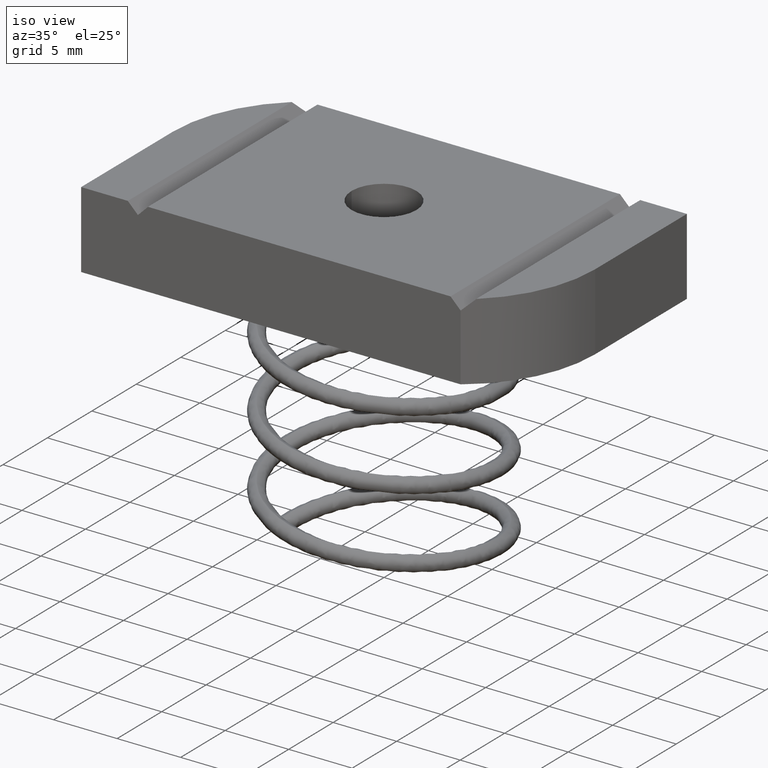
[diagram: clean part render]
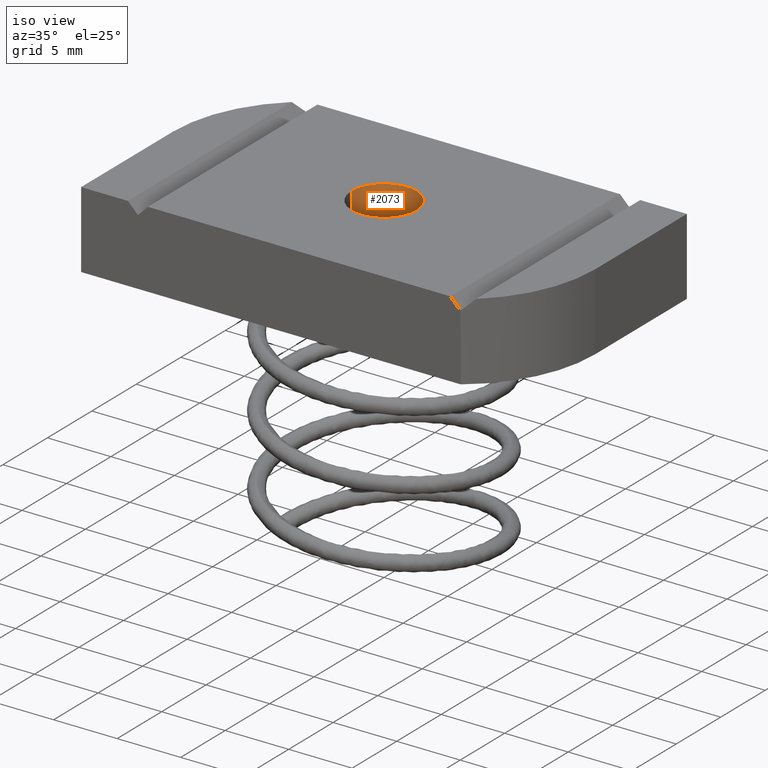
[diagram: same view with one face highlighted and labeled with its STEP entity id]
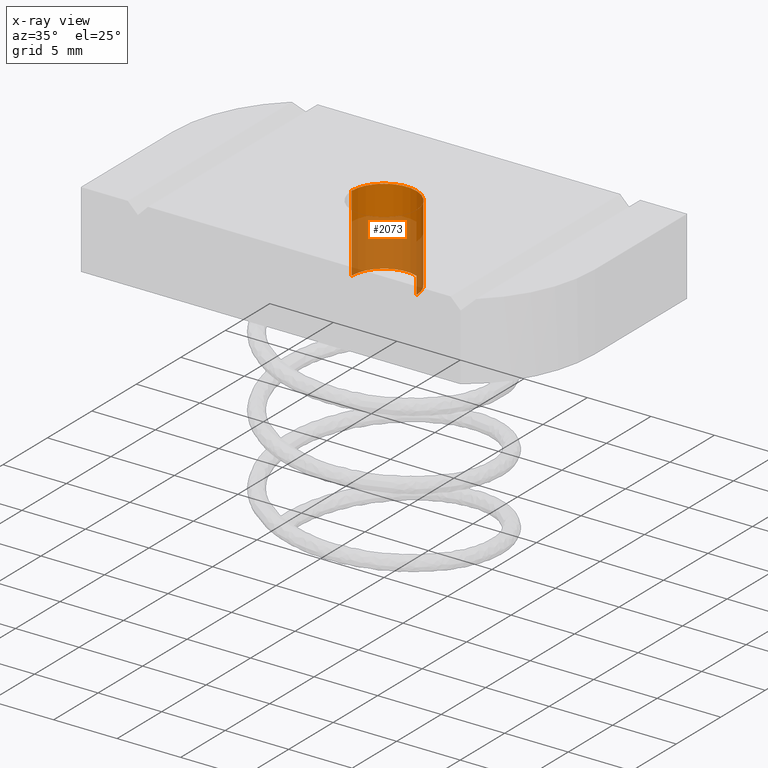
[diagram: x-ray of the same camera — body ghosted, the highlighted face saturated]
A machine part, iso view. The second image highlights one B-rep face of the part: STEP entity #2073.
The next image is the same camera in x-ray: the body ghosted, the highlighted face saturated — about 62% of this face is hidden behind the body in this view.
In plain terms, the highlighted cylindrical surface (partial cylindrical patch) has radius 2.5527 mm, axis along (-0, -0, 1).
Its self-contained STEP definition (entity closure, byte-faithful):
#192 = EDGE_CURVE ( 'NONE', #1075, #1011, #266, .T. ) ;
#198 = EDGE_CURVE ( 'NONE', #935, #1104, #1308, .T. ) ;
#203 = EDGE_CURVE ( 'NONE', #935, #1075, #623, .T. ) ;
#211 = ORIENTED_EDGE ( 'NONE', *, *, #755, .T. ) ;
#214 = ORIENTED_EDGE ( 'NONE', *, *, #203, .F. ) ;
#226 = ORIENTED_EDGE ( 'NONE', *, *, #198, .T. ) ;
#231 = ORIENTED_EDGE ( 'NONE', *, *, #192, .F. ) ;
#261 = VECTOR ( 'NONE', #938, 39.37007874015748100 ) ;
#266 = LINE ( 'NONE', #1072, #261 ) ;
#271 = EDGE_LOOP ( 'NONE', ( #231, #214, #226, #211 ) ) ;
#277 = AXIS2_PLACEMENT_3D ( 'NONE', #1130, #962, #963 ) ;
#282 = AXIS2_PLACEMENT_3D ( 'NONE', #1267, #1269, #1270 ) ;
#623 = CIRCLE ( 'NONE', #1339, 0.1004999999999999600 ) ;
#632 = CIRCLE ( 'NONE', #277, 0.1004999999999995200 ) ;
#755 = EDGE_CURVE ( 'NONE', #1104, #1011, #632, .T. ) ;
#893 = DIRECTION ( 'NONE',  ( -0.0000000000000000000, -0.0000000000000000000, 1.000000000000000000 ) ) ;
#935 = VERTEX_POINT ( 'NONE', #1099 ) ;
#938 = DIRECTION ( 'NONE',  ( -0.0000000000000000000, -0.0000000000000000000, 1.000000000000000000 ) ) ;
#960 = DIRECTION ( 'NONE',  ( -0.0000000000000000000, -0.0000000000000000000, 1.000000000000000000 ) ) ;
#962 = DIRECTION ( 'NONE',  ( -0.0000000000000000000, -0.0000000000000000000, 1.000000000000000000 ) ) ;
#963 = DIRECTION ( 'NONE',  ( 1.000000000000000000, 0.0000000000000000000, 0.0000000000000000000 ) ) ;
#987 = DIRECTION ( 'NONE',  ( 1.000000000000000000, 0.0000000000000000000, 0.0000000000000000000 ) ) ;
#1004 = CARTESIAN_POINT ( 'NONE',  ( 0.0000000000000000000, 0.0000000000000000000, -0.1189999999999999900 ) ) ;
#1011 = VERTEX_POINT ( 'NONE', #1096 ) ;
#1072 = CARTESIAN_POINT ( 'NONE',  ( -0.1004999999999997400, 1.230770033143086600E-017, 0.1189999999999999900 ) ) ;
#1075 = VERTEX_POINT ( 'NONE', #1168 ) ;
#1096 = CARTESIAN_POINT ( 'NONE',  ( -0.1004999999999995200, 1.230770033143085600E-017, 0.1190000000000000500 ) ) ;
#1099 = CARTESIAN_POINT ( 'NONE',  ( 0.1004999999999999600, 0.0000000000000000000, -0.1189999999999999900 ) ) ;
#1104 = VERTEX_POINT ( 'NONE', #1174 ) ;
#1130 = CARTESIAN_POINT ( 'NONE',  ( 0.0000000000000000000, 0.0000000000000000000, 0.1190000000000000500 ) ) ;
#1157 = CARTESIAN_POINT ( 'NONE',  ( 0.1004999999999997400, 0.0000000000000000000, 0.1189999999999999900 ) ) ;
#1168 = CARTESIAN_POINT ( 'NONE',  ( -0.1004999999999999600, 1.230770033143089400E-017, -0.1189999999999999900 ) ) ;
#1174 = CARTESIAN_POINT ( 'NONE',  ( 0.1004999999999995200, 0.0000000000000000000, 0.1190000000000000500 ) ) ;
#1267 = CARTESIAN_POINT ( 'NONE',  ( 0.0000000000000000000, 0.0000000000000000000, 0.1189999999999999900 ) ) ;
#1269 = DIRECTION ( 'NONE',  ( -0.0000000000000000000, -0.0000000000000000000, 1.000000000000000000 ) ) ;
#1270 = DIRECTION ( 'NONE',  ( 1.000000000000000000, 0.0000000000000000000, 0.0000000000000000000 ) ) ;
#1308 = LINE ( 'NONE', #1157, #1309 ) ;
#1309 = VECTOR ( 'NONE', #960, 39.37007874015748100 ) ;
#1339 = AXIS2_PLACEMENT_3D ( 'NONE', #1004, #893, #987 ) ;
#2003 = FACE_OUTER_BOUND ( 'NONE', #271, .T. ) ;
#2010 = CYLINDRICAL_SURFACE ( 'NONE', #282, 0.1004999999999997400 ) ;
#2073 = ADVANCED_FACE ( 'NONE', ( #2003 ), #2010, .F. ) ;